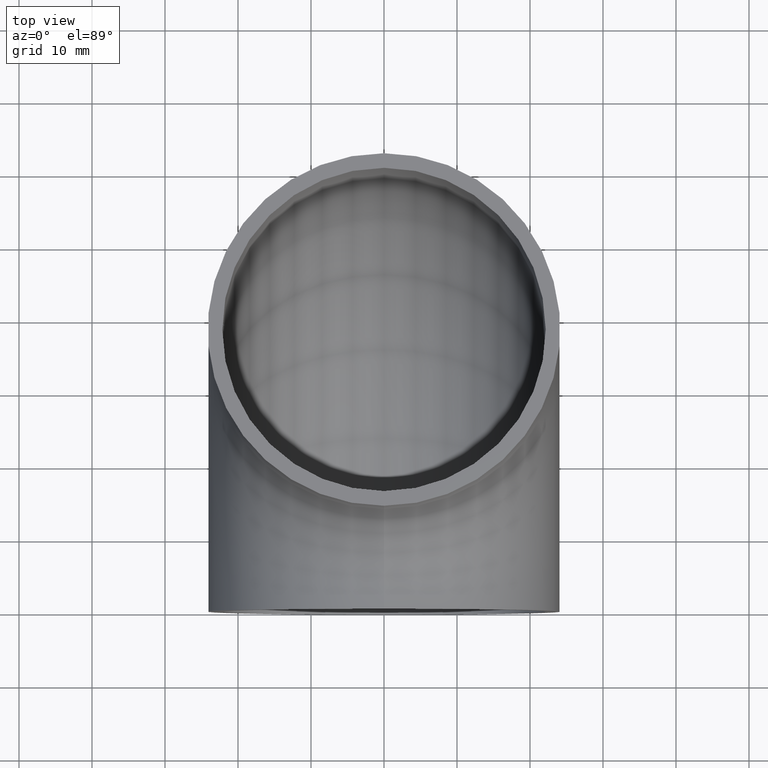
[diagram: clean part render]
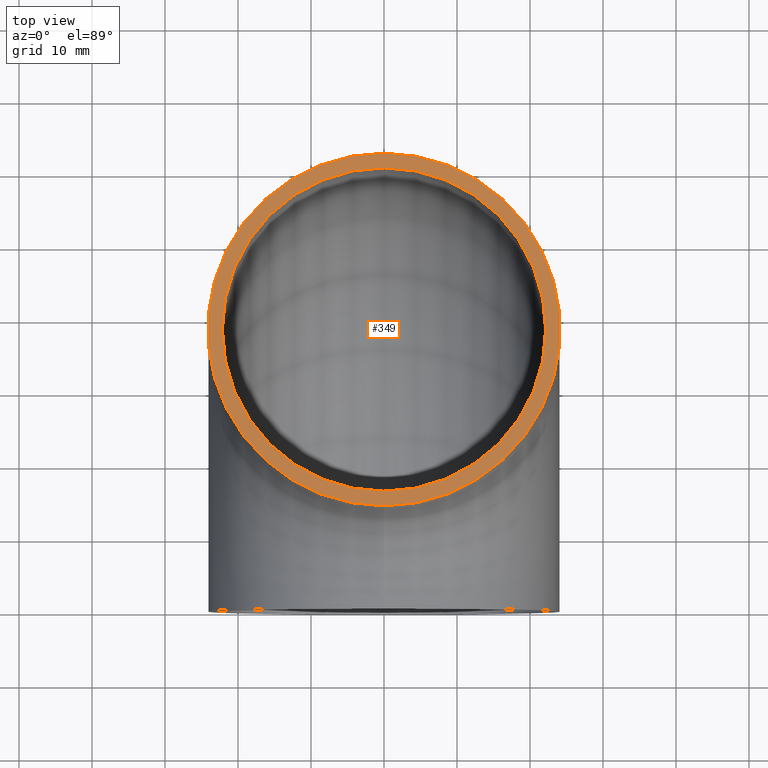
[diagram: same view with one face highlighted and labeled with its STEP entity id]
A machine part, top view. The second image highlights one B-rep face of the part: STEP entity #349.
In plain terms, the highlighted planar face has unit normal (0, 0, 1).
Its self-contained STEP definition (entity closure, byte-faithful):
#349 = ADVANCED_FACE ( 'NONE', ( #8331, #3295 ), #8832, .T. ) ;
#617 = DIRECTION ( 'NONE',  ( 0.000000000000000000, -1.000000000000000000, 6.123233995736766036E-17 ) ) ;
#782 = EDGE_CURVE ( 'NONE', #5257, #5257, #5455, .T. ) ;
#916 = DIRECTION ( 'NONE',  ( 0.000000000000000000, 6.123233995736766036E-17, 1.000000000000000000 ) ) ;
#1433 = CARTESIAN_POINT ( 'NONE',  ( 0.000000000000000000, 38.00000000000000000, -2.326828918379970970E-15 ) ) ;
#1474 = DIRECTION ( 'NONE',  ( 0.000000000000000000, 6.123233995736766036E-17, 1.000000000000000000 ) ) ;
#1605 = ORIENTED_EDGE ( 'NONE', *, *, #782, .F. ) ;
#2110 = VERTEX_POINT ( 'NONE', #6148 ) ;
#2506 = CARTESIAN_POINT ( 'NONE',  ( 0.000000000000000000, 15.85000000000000320, -9.705325883242775480E-16 ) ) ;
#3295 = FACE_OUTER_BOUND ( 'NONE', #5607, .T. ) ;
#3552 = CIRCLE ( 'NONE', #8439, 24.14999999999999858 ) ;
#3637 = CARTESIAN_POINT ( 'NONE',  ( 0.000000000000000000, 38.00000000000000000, -2.326828918379970970E-15 ) ) ;
#4535 = DIRECTION ( 'NONE',  ( 0.000000000000000000, -1.000000000000000000, 6.123233995736766036E-17 ) ) ;
#4647 = EDGE_CURVE ( 'NONE', #2110, #2110, #3552, .T. ) ;
#5257 = VERTEX_POINT ( 'NONE', #2506 ) ;
#5455 = CIRCLE ( 'NONE', #8958, 22.14999999999999503 ) ;
#5607 = EDGE_LOOP ( 'NONE', ( #6190 ) ) ;
#6026 = EDGE_LOOP ( 'NONE', ( #1605 ) ) ;
#6148 = CARTESIAN_POINT ( 'NONE',  ( 0.000000000000000000, 13.85000000000000142, -8.480679084095420054E-16 ) ) ;
#6190 = ORIENTED_EDGE ( 'NONE', *, *, #4647, .T. ) ;
#8331 = FACE_BOUND ( 'NONE', #6026, .T. ) ;
#8439 = AXIS2_PLACEMENT_3D ( 'NONE', #3637, #916, #4535 ) ;
#8832 = PLANE ( 'NONE',  #11685 ) ;
#8958 = AXIS2_PLACEMENT_3D ( 'NONE', #1433, #1474, #9686 ) ;
#9686 = DIRECTION ( 'NONE',  ( 0.000000000000000000, -1.000000000000000000, 6.123233995736766036E-17 ) ) ;
#9805 = DIRECTION ( 'NONE',  ( 0.000000000000000000, 6.123233995736766036E-17, 1.000000000000000000 ) ) ;
#9889 = CARTESIAN_POINT ( 'NONE',  ( 0.000000000000000000, 38.00000000000000000, -2.326828918379970970E-15 ) ) ;
#11685 = AXIS2_PLACEMENT_3D ( 'NONE', #9889, #9805, #617 ) ;